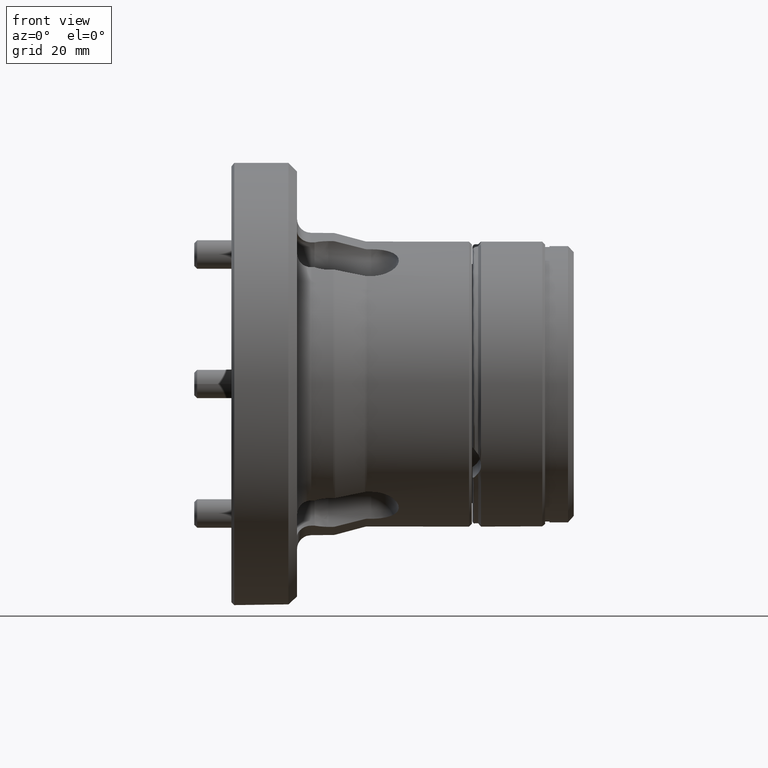
[diagram: clean part render]
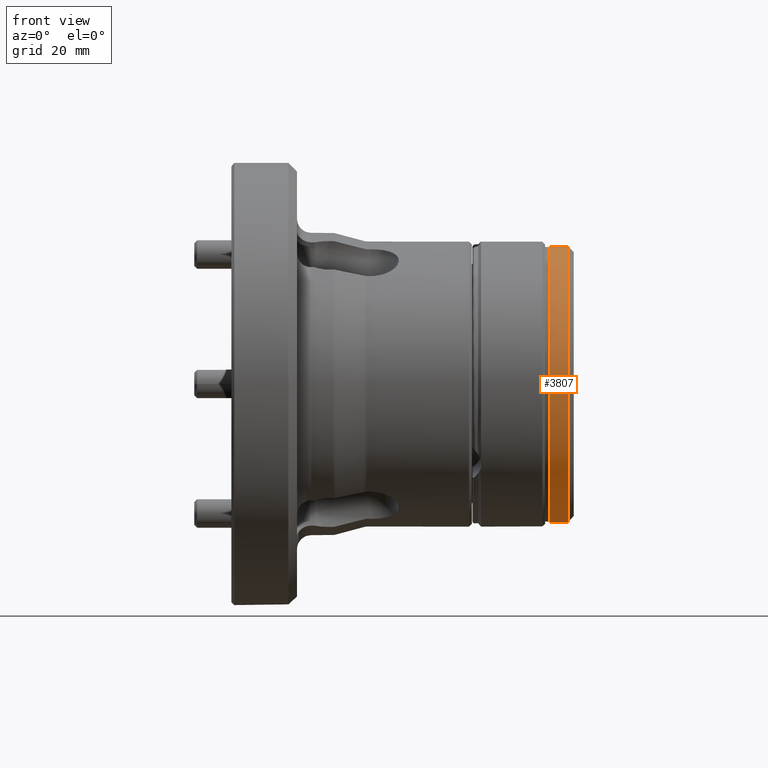
[diagram: same view with one face highlighted and labeled with its STEP entity id]
A machine part, front view. The second image highlights one B-rep face of the part: STEP entity #3807.
In plain terms, the highlighted cylindrical surface (bore or boss wall) has radius 48.5 mm, axis along (-1, 0, 0).
Its self-contained STEP definition (entity closure, byte-faithful):
#342 = CIRCLE ( 'NONE', #4024, 48.50000000000000000 ) ;
#595 = CARTESIAN_POINT ( 'NONE',  ( 33.49999999999997158, -48.50000000000000000, 0.0000000000000000000 ) ) ;
#632 = FACE_OUTER_BOUND ( 'NONE', #1641, .T. ) ;
#1161 = ORIENTED_EDGE ( 'NONE', *, *, #6067, .T. ) ;
#1261 = VERTEX_POINT ( 'NONE', #3401 ) ;
#1462 = CARTESIAN_POINT ( 'NONE',  ( 33.49999999999997158, 7.269707395715193584E-31, 0.0000000000000000000 ) ) ;
#1478 = EDGE_LOOP ( 'NONE', ( #1676 ) ) ;
#1641 = EDGE_LOOP ( 'NONE', ( #1161 ) ) ;
#1676 = ORIENTED_EDGE ( 'NONE', *, *, #2486, .F. ) ;
#1732 = DIRECTION ( 'NONE',  ( 2.170061909168716300E-32, -1.000000000000000000, 0.0000000000000000000 ) ) ;
#1744 = DIRECTION ( 'NONE',  ( -1.000000000000000000, -2.170061909168716300E-32, -0.0000000000000000000 ) ) ;
#1764 = CARTESIAN_POINT ( 'NONE',  ( 0.0000000000000000000, 0.0000000000000000000, 0.0000000000000000000 ) ) ;
#1784 = CYLINDRICAL_SURFACE ( 'NONE', #2011, 48.50000000000000000 ) ;
#1810 = FACE_OUTER_BOUND ( 'NONE', #1478, .T. ) ;
#2011 = AXIS2_PLACEMENT_3D ( 'NONE', #1764, #1744, #1732 ) ;
#2056 = DIRECTION ( 'NONE',  ( 0.0000000000000000000, -1.000000000000000000, 0.0000000000000000000 ) ) ;
#2058 = DIRECTION ( 'NONE',  ( -1.000000000000000000, -2.170061909168716300E-32, -0.0000000000000000000 ) ) ;
#2154 = CARTESIAN_POINT ( 'NONE',  ( 26.99999999999999645, 5.859167154755533353E-31, 0.0000000000000000000 ) ) ;
#2486 = EDGE_CURVE ( 'NONE', #1261, #1261, #342, .T. ) ;
#3401 = CARTESIAN_POINT ( 'NONE',  ( 26.99999999999999645, -48.50000000000000000, 0.0000000000000000000 ) ) ;
#3577 = DIRECTION ( 'NONE',  ( -1.000000000000000000, -2.170061909168719037E-32, -0.0000000000000000000 ) ) ;
#3807 = ADVANCED_FACE ( 'NONE', ( #632, #1810 ), #1784, .T. ) ;
#4024 = AXIS2_PLACEMENT_3D ( 'NONE', #2154, #2058, #2056 ) ;
#4856 = CIRCLE ( 'NONE', #4861, 48.50000000000000000 ) ;
#4861 = AXIS2_PLACEMENT_3D ( 'NONE', #1462, #3577, #5423 ) ;
#5066 = VERTEX_POINT ( 'NONE', #595 ) ;
#5423 = DIRECTION ( 'NONE',  ( 0.0000000000000000000, -1.000000000000000000, 0.0000000000000000000 ) ) ;
#6067 = EDGE_CURVE ( 'NONE', #5066, #5066, #4856, .T. ) ;